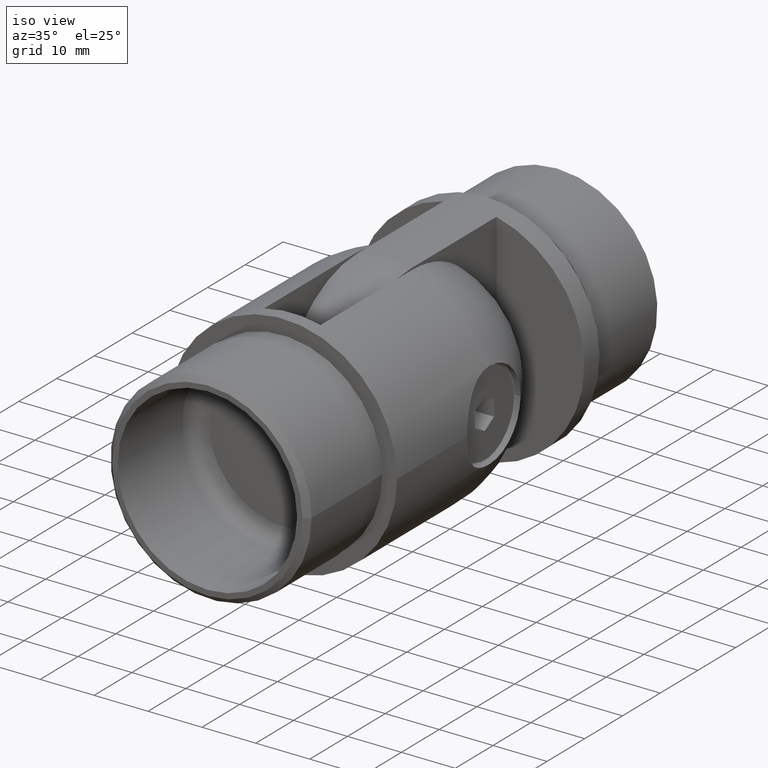
[diagram: clean part render]
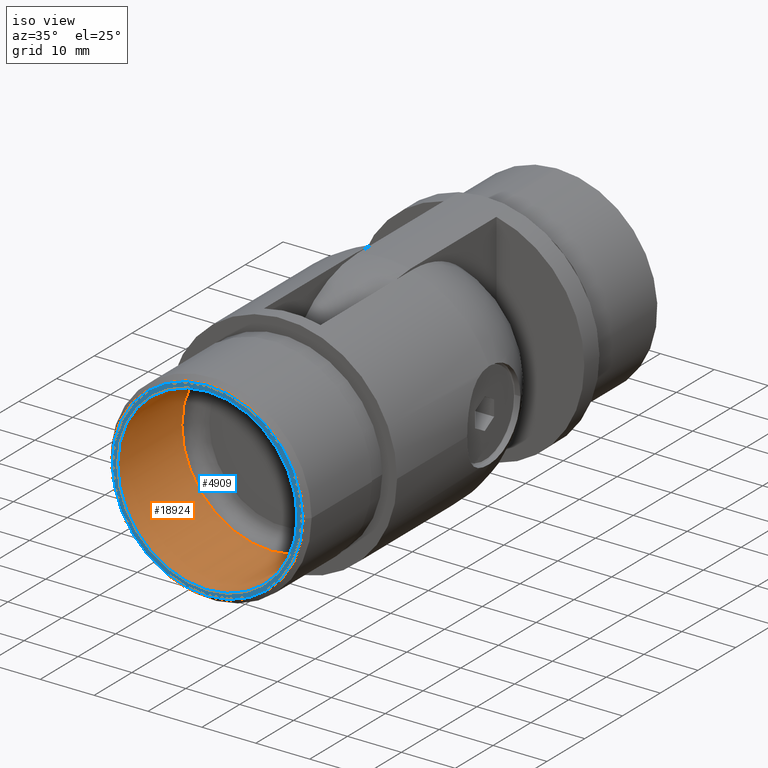
[diagram: same view with the hole feature highlighted: cylindrical wall and planar end face, labeled with their STEP entity ids]
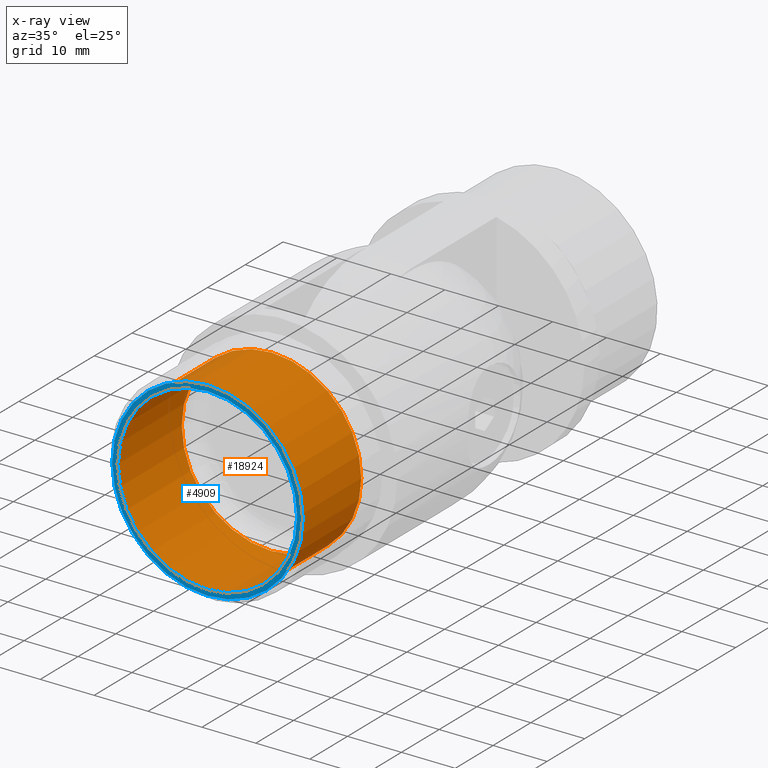
[diagram: x-ray of the same camera — body ghosted, the hole faces saturated]
A machine part, iso view. The highlighted faces form one hole feature of diameter 33.3 mm: the cylindrical wall (entity #18924, orange) and its adjacent planar end face (entity #4909, blue) — they share a circular edge in the B-rep.
The next image is the same camera in x-ray (body ghosted, the hole faces saturated) — the bore reads through the body.
Wall:
#143 = EDGE_CURVE ( 'NONE', #346, #346, #15527, .T. ) ;
#197 = DIRECTION ( 'NONE',  ( -6.794605754846613000E-017, 1.000000000000000000, -0.0000000000000000000 ) ) ;
#320 = DIRECTION ( 'NONE',  ( -6.837611295239389200E-017, 1.000000000000000000, 0.0000000000000000000 ) ) ;
#346 = VERTEX_POINT ( 'NONE', #19449 ) ;
#3376 = CARTESIAN_POINT ( 'NONE',  ( 2.038381726453983900E-016, -3.000000000000000000, 0.0000000000000000000 ) ) ;
#5158 = CARTESIAN_POINT ( 'NONE',  ( 2.038381726453984600E-016, -3.000000000000001300, 0.0000000000000000000 ) ) ;
#5558 = DIRECTION ( 'NONE',  ( 6.794605754846613000E-017, -1.000000000000000000, 0.0000000000000000000 ) ) ;
#8555 = CIRCLE ( 'NONE', #19613, 16.64999999999999900 ) ;
#8872 = AXIS2_PLACEMENT_3D ( 'NONE', #3376, #197, #13101 ) ;
#9056 = ORIENTED_EDGE ( 'NONE', *, *, #14748, .T. ) ;
#9539 = EDGE_LOOP ( 'NONE', ( #9056 ) ) ;
#10041 = CYLINDRICAL_SURFACE ( 'NONE', #8872, 16.64999999999999900 ) ;
#10268 = FACE_OUTER_BOUND ( 'NONE', #9539, .T. ) ;
#12192 = VERTEX_POINT ( 'NONE', #13357 ) ;
#13101 = DIRECTION ( 'NONE',  ( -1.000000000000000000, -7.814069711607240100E-017, 0.0000000000000000000 ) ) ;
#13357 = CARTESIAN_POINT ( 'NONE',  ( 16.64999999999999900, -3.000000000000000000, 0.0000000000000000000 ) ) ;
#14536 = ORIENTED_EDGE ( 'NONE', *, *, #143, .T. ) ;
#14748 = EDGE_CURVE ( 'NONE', #12192, #12192, #8555, .T. ) ;
#14751 = FACE_OUTER_BOUND ( 'NONE', #15646, .T. ) ;
#15031 = CARTESIAN_POINT ( 'NONE',  ( 1.358921150969322700E-015, -20.00000000000000000, 0.0000000000000000000 ) ) ;
#15527 = CIRCLE ( 'NONE', #20243, 16.64999999999999900 ) ;
#15646 = EDGE_LOOP ( 'NONE', ( #14536 ) ) ;
#16235 = DIRECTION ( 'NONE',  ( 1.000000000000000000, 7.814069711607240100E-017, 0.0000000000000000000 ) ) ;
#18111 = DIRECTION ( 'NONE',  ( 1.000000000000000000, 0.0000000000000000000, 0.0000000000000000000 ) ) ;
#18924 = ADVANCED_FACE ( 'NONE', ( #10268, #14751 ), #10041, .F. ) ;
#19449 = CARTESIAN_POINT ( 'NONE',  ( 16.64999999999999900, -20.00000000000000000, 0.0000000000000000000 ) ) ;
#19613 = AXIS2_PLACEMENT_3D ( 'NONE', #5158, #320, #16235 ) ;
#20243 = AXIS2_PLACEMENT_3D ( 'NONE', #15031, #5558, #18111 ) ;
End face:
#143 = EDGE_CURVE ( 'NONE', #346, #346, #15527, .T. ) ;
#346 = VERTEX_POINT ( 'NONE', #19449 ) ;
#1256 = PLANE ( 'NONE',  #3970 ) ;
#1820 = VERTEX_POINT ( 'NONE', #18330 ) ;
#2047 = EDGE_LOOP ( 'NONE', ( #18663 ) ) ;
#3970 = AXIS2_PLACEMENT_3D ( 'NONE', #15229, #12038, #12301 ) ;
#4070 = FACE_BOUND ( 'NONE', #13854, .T. ) ;
#4909 = ADVANCED_FACE ( 'NONE', ( #16935, #4070 ), #1256, .T. ) ;
#5558 = DIRECTION ( 'NONE',  ( 6.794605754846613000E-017, -1.000000000000000000, 0.0000000000000000000 ) ) ;
#7809 = CIRCLE ( 'NONE', #13184, 17.65000000000001300 ) ;
#9652 = DIRECTION ( 'NONE',  ( 1.000000000000000000, 0.0000000000000000000, 0.0000000000000000000 ) ) ;
#12038 = DIRECTION ( 'NONE',  ( 6.794605754846613000E-017, -1.000000000000000000, 0.0000000000000000000 ) ) ;
#12301 = DIRECTION ( 'NONE',  ( 1.000000000000000000, 6.794605754846613000E-017, 0.0000000000000000000 ) ) ;
#13184 = AXIS2_PLACEMENT_3D ( 'NONE', #15945, #19173, #9652 ) ;
#13854 = EDGE_LOOP ( 'NONE', ( #13892 ) ) ;
#13892 = ORIENTED_EDGE ( 'NONE', *, *, #143, .F. ) ;
#14626 = EDGE_CURVE ( 'NONE', #1820, #1820, #7809, .T. ) ;
#15031 = CARTESIAN_POINT ( 'NONE',  ( 1.358921150969322700E-015, -20.00000000000000000, 0.0000000000000000000 ) ) ;
#15229 = CARTESIAN_POINT ( 'NONE',  ( 1.358921150969322700E-015, -20.00000000000000000, 0.0000000000000000000 ) ) ;
#15527 = CIRCLE ( 'NONE', #20243, 16.64999999999999900 ) ;
#15945 = CARTESIAN_POINT ( 'NONE',  ( 1.358921150969322700E-015, -20.00000000000000000, 0.0000000000000000000 ) ) ;
#16935 = FACE_OUTER_BOUND ( 'NONE', #2047, .T. ) ;
#18111 = DIRECTION ( 'NONE',  ( 1.000000000000000000, 0.0000000000000000000, 0.0000000000000000000 ) ) ;
#18330 = CARTESIAN_POINT ( 'NONE',  ( 17.65000000000001300, -20.00000000000000000, 0.0000000000000000000 ) ) ;
#18663 = ORIENTED_EDGE ( 'NONE', *, *, #14626, .T. ) ;
#19173 = DIRECTION ( 'NONE',  ( 6.794605754846613000E-017, -1.000000000000000000, 0.0000000000000000000 ) ) ;
#19449 = CARTESIAN_POINT ( 'NONE',  ( 16.64999999999999900, -20.00000000000000000, 0.0000000000000000000 ) ) ;
#20243 = AXIS2_PLACEMENT_3D ( 'NONE', #15031, #5558, #18111 ) ;